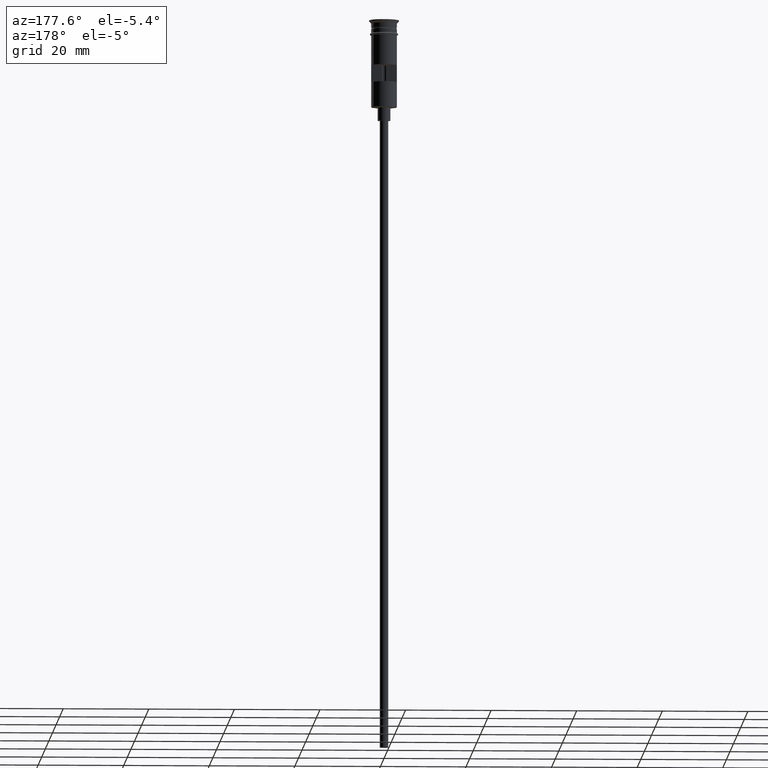
[diagram: clean part render]
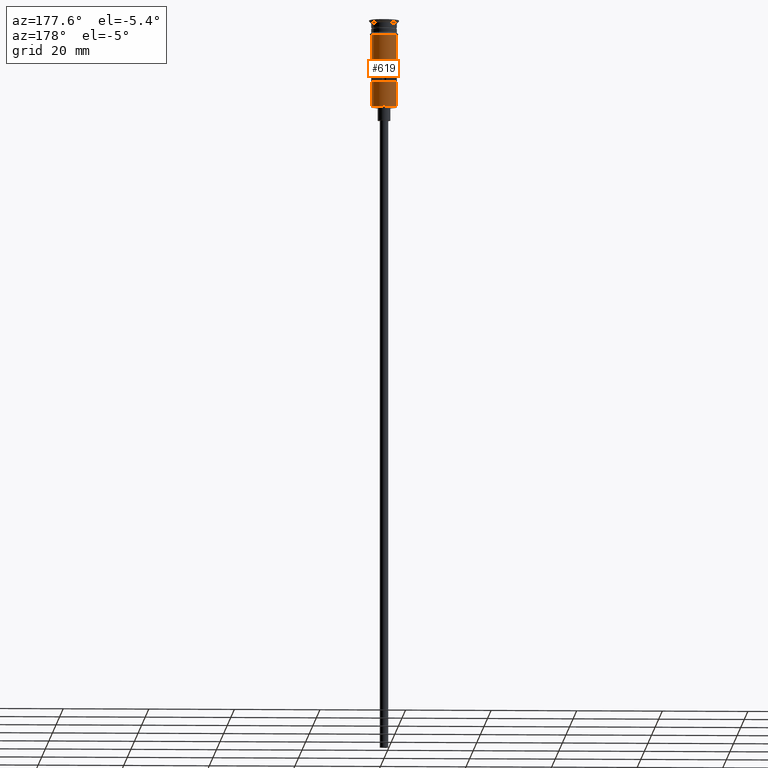
[diagram: same view with one face highlighted and labeled with its STEP entity id]
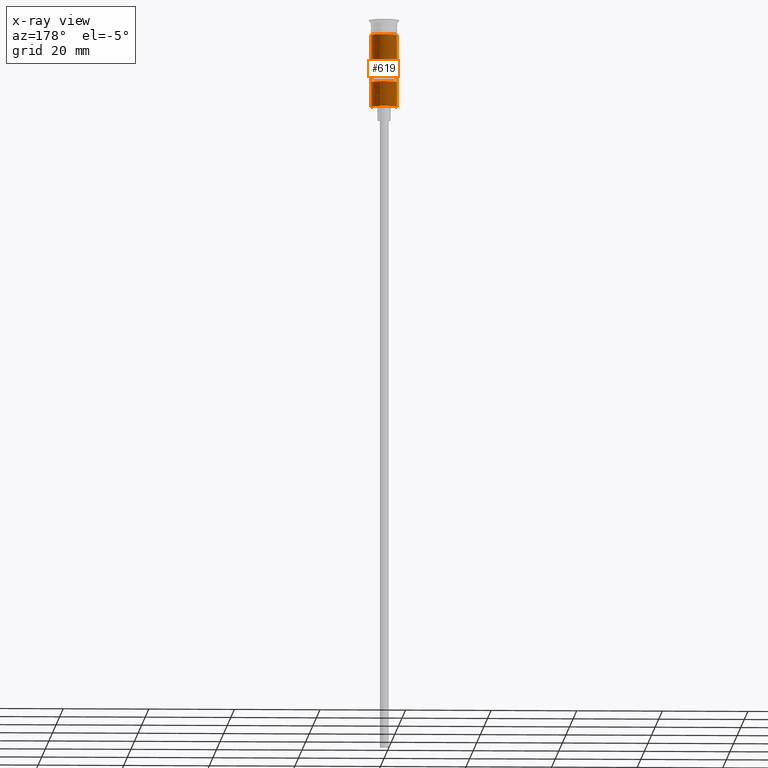
[diagram: x-ray of the same camera — body ghosted, the highlighted face saturated]
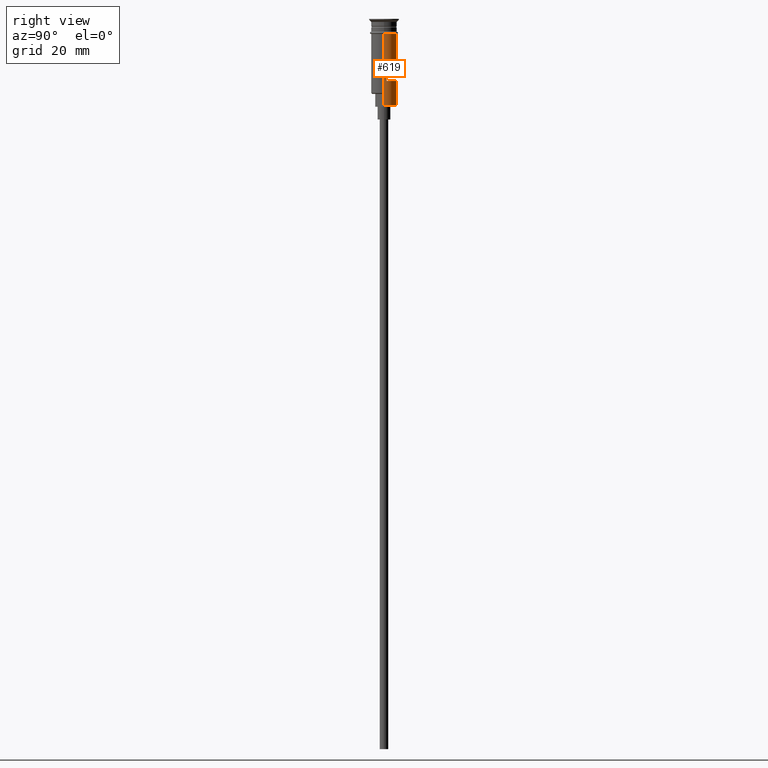
[diagram: same view with one face highlighted and labeled with its STEP entity id]
A machine part, auxiliary view. The second image highlights one B-rep face of the part: STEP entity #619.
The next image is the same camera in x-ray: the body ghosted, the highlighted face saturated — about 0% of this face is hidden behind the body in this view.
A second angle (right view) of the same face is appended — the face is thin or edge-on in the first view.
In plain terms, the highlighted cylindrical surface (edge-blend (fillet) strip) has radius 3 mm, axis along (-0, -0, 1).
Its self-contained STEP definition (entity closure, byte-faithful):
#1 = VERTEX_POINT ( 'NONE', #655 ) ;
#4 = EDGE_CURVE ( 'NONE', #527, #992, #1509, .T. ) ;
#11 = CIRCLE ( 'NONE', #1131, 2.999999999999996891 ) ;
#27 = DIRECTION ( 'NONE',  ( 0.000000000000000000, 0.000000000000000000, -1.000000000000000000 ) ) ;
#41 = EDGE_CURVE ( 'NONE', #358, #1404, #664, .T. ) ;
#42 = CIRCLE ( 'NONE', #974, 2.999999999999996891 ) ;
#49 = DIRECTION ( 'NONE',  ( -0.000000000000000000, -0.000000000000000000, 1.000000000000000000 ) ) ;
#56 = LINE ( 'NONE', #425, #186 ) ;
#60 = CARTESIAN_POINT ( 'NONE',  ( -2.939387691339810260, 0.5999999999999994227, -10.50000000000000000 ) ) ;
#112 = AXIS2_PLACEMENT_3D ( 'NONE', #853, #1216, #1465 ) ;
#186 = VECTOR ( 'NONE', #49, 1000.000000000000000 ) ;
#189 = CARTESIAN_POINT ( 'NONE',  ( 2.999999999999995115, 3.673940397442053952E-16, -20.29999999999995808 ) ) ;
#198 = CARTESIAN_POINT ( 'NONE',  ( -2.999999999999995115, 0.000000000000000000, -17.30000000000000782 ) ) ;
#212 = CYLINDRICAL_SURFACE ( 'NONE', #1411, 2.999999999999996891 ) ;
#219 = EDGE_CURVE ( 'NONE', #1, #440, #262, .T. ) ;
#262 = CIRCLE ( 'NONE', #112, 2.999999999999998668 ) ;
#283 = DIRECTION ( 'NONE',  ( -0.000000000000000000, 0.000000000000000000, -1.000000000000000000 ) ) ;
#301 = EDGE_LOOP ( 'NONE', ( #1476, #1355, #1581, #809, #784, #333 ) ) ;
#325 = CARTESIAN_POINT ( 'NONE',  ( 0.000000000000000000, 0.000000000000000000, -14.50000000000000000 ) ) ;
#332 = EDGE_CURVE ( 'NONE', #953, #563, #11, .T. ) ;
#333 = ORIENTED_EDGE ( 'NONE', *, *, #332, .T. ) ;
#342 = AXIS2_PLACEMENT_3D ( 'NONE', #934, #283, #660 ) ;
#358 = VERTEX_POINT ( 'NONE', #881 ) ;
#424 = VERTEX_POINT ( 'NONE', #1495 ) ;
#425 = CARTESIAN_POINT ( 'NONE',  ( 2.999999999999996891, 0.000000000000000000, 0.000000000000000000 ) ) ;
#429 = ORIENTED_EDGE ( 'NONE', *, *, #1438, .F. ) ;
#440 = VERTEX_POINT ( 'NONE', #1148 ) ;
#486 = DIRECTION ( 'NONE',  ( -0.000000000000000000, -0.000000000000000000, 1.000000000000000000 ) ) ;
#527 = VERTEX_POINT ( 'NONE', #952 ) ;
#563 = VERTEX_POINT ( 'NONE', #1568 ) ;
#578 = FACE_OUTER_BOUND ( 'NONE', #301, .T. ) ;
#600 = LINE ( 'NONE', #1091, #920 ) ;
#606 = CARTESIAN_POINT ( 'NONE',  ( -2.999999999999995115, 0.000000000000000000, -20.50000000000000000 ) ) ;
#612 = ORIENTED_EDGE ( 'NONE', *, *, #4, .F. ) ;
#619 = ADVANCED_FACE ( 'NONE', ( #725, #578 ), #212, .T. ) ;
#638 = EDGE_LOOP ( 'NONE', ( #612, #1018, #663, #429 ) ) ;
#655 = CARTESIAN_POINT ( 'NONE',  ( 2.999999999999998668, 0.000000000000000000, -3.499999999999998668 ) ) ;
#660 = DIRECTION ( 'NONE',  ( 1.000000000000000000, 0.000000000000000000, 0.000000000000000000 ) ) ;
#663 = ORIENTED_EDGE ( 'NONE', *, *, #41, .F. ) ;
#664 = LINE ( 'NONE', #1395, #1109 ) ;
#725 = FACE_BOUND ( 'NONE', #638, .T. ) ;
#761 = VECTOR ( 'NONE', #486, 1000.000000000000000 ) ;
#784 = ORIENTED_EDGE ( 'NONE', *, *, #1408, .F. ) ;
#807 = DIRECTION ( 'NONE',  ( 0.000000000000000000, 0.000000000000000000, 1.000000000000000000 ) ) ;
#809 = ORIENTED_EDGE ( 'NONE', *, *, #913, .F. ) ;
#853 = CARTESIAN_POINT ( 'NONE',  ( 0.000000000000000000, 0.000000000000000000, -3.499999999999998668 ) ) ;
#881 = CARTESIAN_POINT ( 'NONE',  ( -2.939387691339810260, 0.5999999999999994227, -14.50000000000000000 ) ) ;
#893 = CARTESIAN_POINT ( 'NONE',  ( 0.000000000000000000, 0.000000000000000000, -20.29999999999995808 ) ) ;
#900 = EDGE_CURVE ( 'NONE', #1404, #527, #1307, .T. ) ;
#913 = EDGE_CURVE ( 'NONE', #424, #1, #56, .T. ) ;
#920 = VECTOR ( 'NONE', #1113, 1000.000000000000000 ) ;
#931 = CARTESIAN_POINT ( 'NONE',  ( 2.999999999999995115, 3.673940397442053952E-16, -20.50000000000000000 ) ) ;
#934 = CARTESIAN_POINT ( 'NONE',  ( 0.000000000000000000, 0.000000000000000000, -10.50000000000000000 ) ) ;
#952 = CARTESIAN_POINT ( 'NONE',  ( 2.939387691339810260, 0.5999999999999994227, -10.50000000000000000 ) ) ;
#953 = VERTEX_POINT ( 'NONE', #189 ) ;
#965 = CARTESIAN_POINT ( 'NONE',  ( 0.000000000000000000, 0.000000000000000000, 0.000000000000000000 ) ) ;
#974 = AXIS2_PLACEMENT_3D ( 'NONE', #325, #807, #1193 ) ;
#992 = VERTEX_POINT ( 'NONE', #1541 ) ;
#1018 = ORIENTED_EDGE ( 'NONE', *, *, #900, .F. ) ;
#1056 = LINE ( 'NONE', #931, #1539 ) ;
#1070 = DIRECTION ( 'NONE',  ( -0.000000000000000000, -0.000000000000000000, 1.000000000000000000 ) ) ;
#1091 = CARTESIAN_POINT ( 'NONE',  ( -2.999999999999996891, 3.673940397442055924E-16, 0.000000000000000000 ) ) ;
#1109 = VECTOR ( 'NONE', #1287, 1000.000000000000000 ) ;
#1113 = DIRECTION ( 'NONE',  ( -0.000000000000000000, -0.000000000000000000, 1.000000000000000000 ) ) ;
#1119 = EDGE_CURVE ( 'NONE', #1451, #440, #600, .T. ) ;
#1121 = DIRECTION ( 'NONE',  ( -0.000000000000000000, -0.000000000000000000, 1.000000000000000000 ) ) ;
#1131 = AXIS2_PLACEMENT_3D ( 'NONE', #893, #1393, #1160 ) ;
#1148 = CARTESIAN_POINT ( 'NONE',  ( -2.999999999999999112, 3.673940397442058389E-16, -3.499999999999998668 ) ) ;
#1160 = DIRECTION ( 'NONE',  ( -1.000000000000000000, 0.000000000000000000, 0.000000000000000000 ) ) ;
#1179 = VECTOR ( 'NONE', #27, 1000.000000000000000 ) ;
#1193 = DIRECTION ( 'NONE',  ( -1.000000000000000000, 0.000000000000000000, 0.000000000000000000 ) ) ;
#1216 = DIRECTION ( 'NONE',  ( -0.000000000000000000, -0.000000000000000000, 1.000000000000000000 ) ) ;
#1229 = DIRECTION ( 'NONE',  ( 1.000000000000000000, 0.000000000000000000, 0.000000000000000000 ) ) ;
#1287 = DIRECTION ( 'NONE',  ( -0.000000000000000000, -0.000000000000000000, 1.000000000000000000 ) ) ;
#1307 = CIRCLE ( 'NONE', #342, 2.999999999999996891 ) ;
#1355 = ORIENTED_EDGE ( 'NONE', *, *, #1119, .T. ) ;
#1378 = LINE ( 'NONE', #606, #761 ) ;
#1393 = DIRECTION ( 'NONE',  ( 0.000000000000000000, 0.000000000000000000, 1.000000000000000000 ) ) ;
#1395 = CARTESIAN_POINT ( 'NONE',  ( -2.939387691339810260, 0.5999999999999994227, 0.000000000000000000 ) ) ;
#1404 = VERTEX_POINT ( 'NONE', #60 ) ;
#1408 = EDGE_CURVE ( 'NONE', #953, #424, #1056, .T. ) ;
#1409 = CARTESIAN_POINT ( 'NONE',  ( 2.939387691339810260, 0.5999999999999994227, 0.000000000000000000 ) ) ;
#1411 = AXIS2_PLACEMENT_3D ( 'NONE', #965, #1121, #1229 ) ;
#1438 = EDGE_CURVE ( 'NONE', #992, #358, #42, .T. ) ;
#1451 = VERTEX_POINT ( 'NONE', #198 ) ;
#1465 = DIRECTION ( 'NONE',  ( 1.000000000000000000, 0.000000000000000000, 0.000000000000000000 ) ) ;
#1476 = ORIENTED_EDGE ( 'NONE', *, *, #1557, .T. ) ;
#1495 = CARTESIAN_POINT ( 'NONE',  ( 2.999999999999996891, 3.673940397442055924E-16, -17.30000000000000782 ) ) ;
#1509 = LINE ( 'NONE', #1409, #1179 ) ;
#1539 = VECTOR ( 'NONE', #1070, 1000.000000000000000 ) ;
#1541 = CARTESIAN_POINT ( 'NONE',  ( 2.939387691339810260, 0.5999999999999994227, -14.50000000000000000 ) ) ;
#1557 = EDGE_CURVE ( 'NONE', #563, #1451, #1378, .T. ) ;
#1568 = CARTESIAN_POINT ( 'NONE',  ( -2.999999999999995115, 0.000000000000000000, -20.29999999999995808 ) ) ;
#1581 = ORIENTED_EDGE ( 'NONE', *, *, #219, .F. ) ;